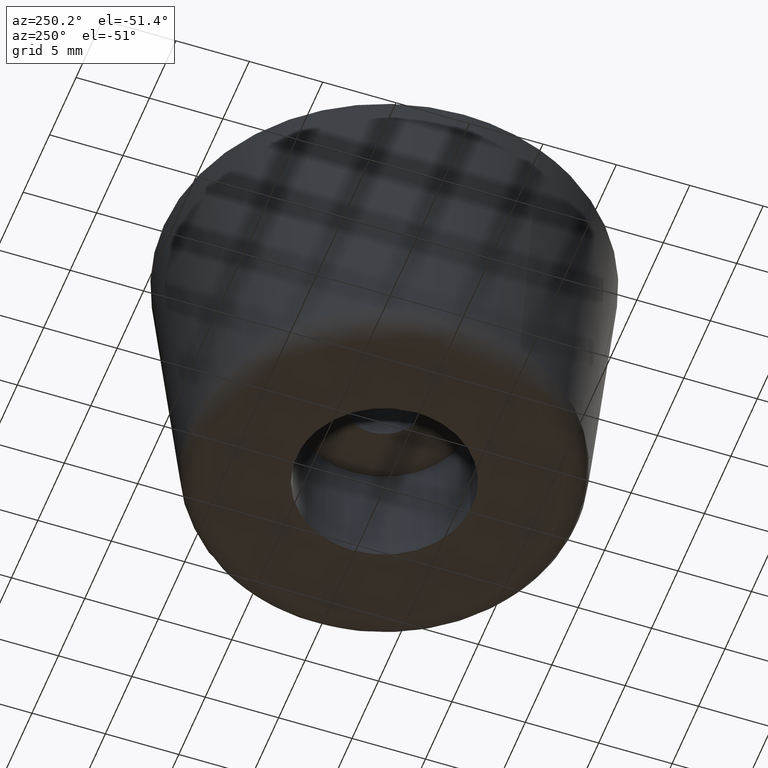
[diagram: clean part render]
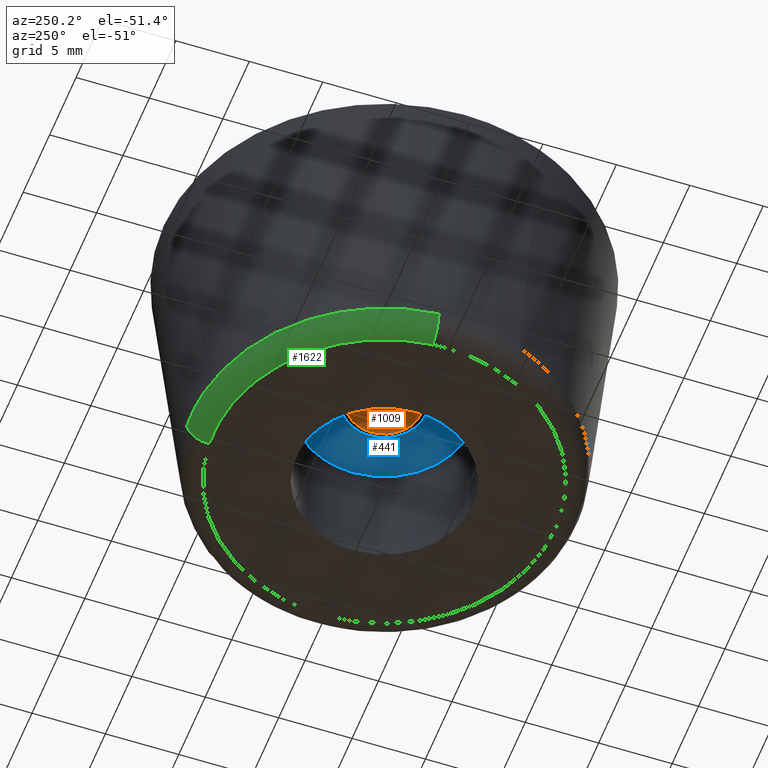
[diagram: same view with three faces highlighted in distinct colors, each labeled with its STEP entity id]
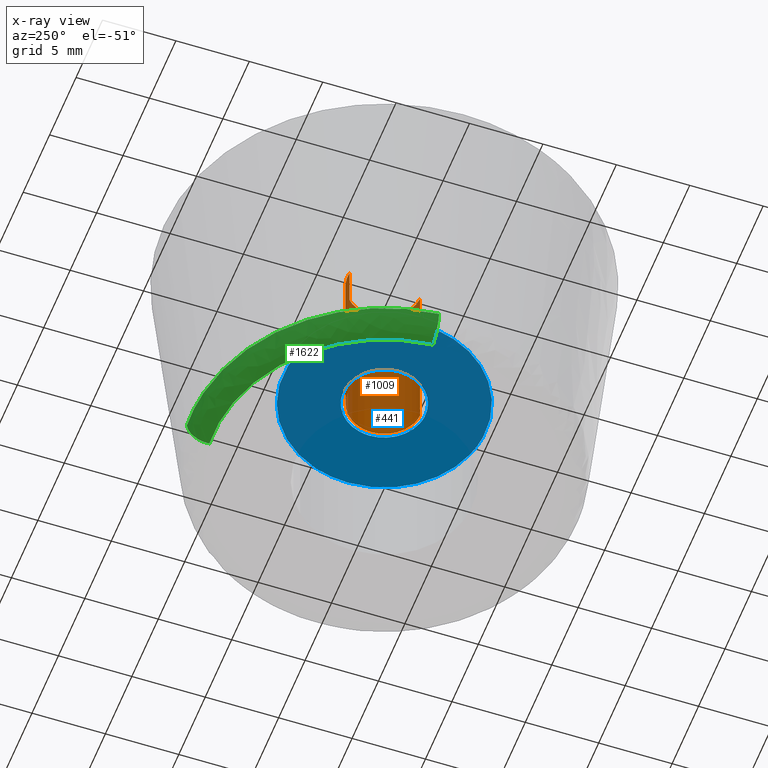
[diagram: x-ray of the same camera — body ghosted, the three highlighted faces saturated]
A machine part, auxiliary view with three faces highlighted in distinct colors.
The next image is the same camera in x-ray (body ghosted, the three faces saturated) — at least one of them is partly hidden behind the body in this view.
Their STEP definitions:

[orange] entity #1009 — the highlighted face is a freeform B-spline surface patch.
#907=CARTESIAN_POINT('',(-0.295085586641896,2.482523815909166,20.300000000000008));
#908=CARTESIAN_POINT('',(-0.224036821594944,2.490969038621514,20.300000000000004));
#909=CARTESIAN_POINT('',(-0.152621348837143,2.495336996054667,20.300000000000001));
#910=CARTESIAN_POINT('',(2.342715647217524,2.647958344891809,20.300000000000008));
#911=CARTESIAN_POINT('',(2.495336996054667,0.152621348837143,20.300000000000001));
#912=CARTESIAN_POINT('',(2.647958344891809,-2.342715647217524,20.300000000000008));
#913=CARTESIAN_POINT('',(0.152621348837143,-2.495336996054667,20.300000000000001));
#914=CARTESIAN_POINT('',(-0.295085586641896,2.482523815909166,7.692500000000000));
#915=CARTESIAN_POINT('',(-0.224036821594944,2.490969038621514,7.692499999999999));
#916=CARTESIAN_POINT('',(-0.152621348837143,2.495336996054667,7.692499999999999));
#917=CARTESIAN_POINT('',(2.342715647217524,2.647958344891809,7.692499999999999));
#918=CARTESIAN_POINT('',(2.495336996054667,0.152621348837143,7.692499999999999));
#919=CARTESIAN_POINT('',(2.647958344891809,-2.342715647217524,7.692499999999999));
#920=CARTESIAN_POINT('',(0.152621348837143,-2.495336996054667,7.692499999999999));
#928=(BOUNDED_SURFACE()B_SPLINE_SURFACE(2,1,((#907,#914),(#908,#915),(#909,#916),(#910,#917),(#911,#918),(#912,#919),(#913,#920)),.UNSPECIFIED.,.F.,.F.,.U.)B_SPLINE_SURFACE_WITH_KNOTS((3,2,2,3),(2,2),(0.0,0.165685424949238,4.307821048680188,8.449956672411137),(0.0,12.607500000000011),.UNSPECIFIED.)GEOMETRIC_REPRESENTATION_ITEM()RATIONAL_B_SPLINE_SURFACE(((0.977505800795127,0.977505800795127),(0.988284271247462,0.988284271247462),(1.0,1.0),(0.707106781186548,0.707106781186548),(1.0,1.0),(0.707106781186548,0.707106781186548),(1.0,1.0)))REPRESENTATION_ITEM('')SURFACE());
#929=CARTESIAN_POINT('',(-0.295085586665474,2.482523815906363,20.0));
#930=VERTEX_POINT('',#929);
#931=CARTESIAN_POINT('',(2.500000000000000,0.0,20.0));
#932=VERTEX_POINT('',#931);
#933=CARTESIAN_POINT('',(-0.295085586665474,2.482523815906363,20.000000000000004));
#934=CARTESIAN_POINT('',(-0.148060299153603,2.500000000000000,20.000000000000004));
#935=CARTESIAN_POINT('',(0.0,2.500000000000000,20.0));
#936=CARTESIAN_POINT('',(2.500000000000000,2.500000000000000,19.999999999999996));
#937=CARTESIAN_POINT('',(2.500000000000000,0.0,20.0));
#945=(BOUNDED_CURVE()B_SPLINE_CURVE(2,(#933,#934,#935,#936,#937),.UNSPECIFIED.,.F.,.U.)B_SPLINE_CURVE_WITH_KNOTS((3,2,3),(0.229562473512434,0.250000000000000,0.500000000000000),.UNSPECIFIED.)CURVE()GEOMETRIC_REPRESENTATION_ITEM()RATIONAL_B_SPLINE_CURVE((0.956026754181593,0.976055948329886,1.0,0.707106781186548,1.0))REPRESENTATION_ITEM(''));
#946=EDGE_CURVE('',#930,#932,#945,.T.);
#947=ORIENTED_EDGE('',*,*,#946,.F.);
#948=CARTESIAN_POINT('',(-0.295085586665474,2.482523815906363,8.0));
#949=VERTEX_POINT('',#948);
#950=CARTESIAN_POINT('',(-0.295085586665474,2.482523815906363,20.0));
#951=CARTESIAN_POINT('',(-0.295085586665474,2.482523815906363,8.0));
#952=QUASI_UNIFORM_CURVE('',1,(#950,#951),.UNSPECIFIED.,.F.,.U.);
#953=EDGE_CURVE('',#930,#949,#952,.T.);
#954=ORIENTED_EDGE('',*,*,#953,.T.);
#955=CARTESIAN_POINT('',(2.500000000000000,0.0,8.0));
#956=VERTEX_POINT('',#955);
#957=CARTESIAN_POINT('',(-0.295085586665474,2.482523815906363,8.000000000000002));
#958=CARTESIAN_POINT('',(-0.148060299153603,2.500000000000000,8.0));
#959=CARTESIAN_POINT('',(0.0,2.500000000000000,8.0));
#960=CARTESIAN_POINT('',(2.500000000000000,2.500000000000000,8.0));
#961=CARTESIAN_POINT('',(2.500000000000000,0.0,8.0));
#969=(BOUNDED_CURVE()B_SPLINE_CURVE(2,(#957,#958,#959,#960,#961),.UNSPECIFIED.,.F.,.U.)B_SPLINE_CURVE_WITH_KNOTS((3,2,3),(0.229562473512434,0.250000000000000,0.500000000000000),.UNSPECIFIED.)CURVE()GEOMETRIC_REPRESENTATION_ITEM()RATIONAL_B_SPLINE_CURVE((0.956026754181593,0.976055948329886,1.0,0.707106781186548,1.0))REPRESENTATION_ITEM(''));
#970=EDGE_CURVE('',#949,#956,#969,.T.);
#971=ORIENTED_EDGE('',*,*,#970,.T.);
#972=CARTESIAN_POINT('',(0.152621348888177,-2.495336996051546,8.0));
#973=VERTEX_POINT('',#972);
#974=CARTESIAN_POINT('',(2.500000000000000,0.0,8.0));
#975=CARTESIAN_POINT('',(2.500000000000000,-2.351765167167861,8.0));
#976=CARTESIAN_POINT('',(0.152621348888177,-2.495336996051545,8.0));
#984=(BOUNDED_CURVE()B_SPLINE_CURVE(2,(#974,#975,#976),.UNSPECIFIED.,.F.,.U.)B_SPLINE_CURVE_WITH_KNOTS((3,3),(0.500000000000000,0.739332962234911),.UNSPECIFIED.)CURVE()GEOMETRIC_REPRESENTATION_ITEM()RATIONAL_B_SPLINE_CURVE((1.0,0.719603993291434,0.976072041658075))REPRESENTATION_ITEM(''));
#985=EDGE_CURVE('',#956,#973,#984,.T.);
#986=ORIENTED_EDGE('',*,*,#985,.T.);
#987=CARTESIAN_POINT('',(0.152621348888177,-2.495336996051545,20.0));
#988=VERTEX_POINT('',#987);
#989=CARTESIAN_POINT('',(0.152621348888177,-2.495336996051545,20.0));
#990=CARTESIAN_POINT('',(0.152621348888177,-2.495336996051546,8.0));
#991=QUASI_UNIFORM_CURVE('',1,(#989,#990),.UNSPECIFIED.,.F.,.U.);
#992=EDGE_CURVE('',#988,#973,#991,.T.);
#993=ORIENTED_EDGE('',*,*,#992,.F.);
#994=CARTESIAN_POINT('',(2.500000000000000,0.0,20.0));
#995=CARTESIAN_POINT('',(2.500000000000000,-2.351765167167861,20.0));
#996=CARTESIAN_POINT('',(0.152621348888177,-2.495336996051545,20.0));
#1004=(BOUNDED_CURVE()B_SPLINE_CURVE(2,(#994,#995,#996),.UNSPECIFIED.,.F.,.U.)B_SPLINE_CURVE_WITH_KNOTS((3,3),(0.500000000000000,0.739332962234911),.UNSPECIFIED.)CURVE()GEOMETRIC_REPRESENTATION_ITEM()RATIONAL_B_SPLINE_CURVE((1.0,0.719603993291434,0.976072041658075))REPRESENTATION_ITEM(''));
#1005=EDGE_CURVE('',#932,#988,#1004,.T.);
#1006=ORIENTED_EDGE('',*,*,#1005,.F.);
#1007=EDGE_LOOP('',(#947,#954,#971,#986,#993,#1006));
#1008=FACE_OUTER_BOUND('',#1007,.T.);
#1009=ADVANCED_FACE('',(#1008),#928,.F.);

[blue] entity #441 — the highlighted face is a freeform B-spline surface patch.
#66=CARTESIAN_POINT('',(-0.330495857061675,2.780426673815561,8.0));
#67=VERTEX_POINT('',#66);
#68=CARTESIAN_POINT('',(2.800000000000000,0.0,8.0));
#69=VERTEX_POINT('',#68);
#70=CARTESIAN_POINT('',(-0.330495857061675,2.780426673815561,8.0));
#71=CARTESIAN_POINT('',(-0.165827535048340,2.800000000000000,8.0));
#72=CARTESIAN_POINT('',(0.0,2.800000000000000,8.0));
#73=CARTESIAN_POINT('',(2.800000000000000,2.800000000000000,8.0));
#74=CARTESIAN_POINT('',(2.800000000000000,0.0,8.0));
#82=(BOUNDED_CURVE()B_SPLINE_CURVE(2,(#70,#71,#72,#73,#74),.UNSPECIFIED.,.F.,.U.)B_SPLINE_CURVE_WITH_KNOTS((3,2,3),(0.229562473512879,0.250000000000000,0.500000000000000),.UNSPECIFIED.)CURVE()GEOMETRIC_REPRESENTATION_ITEM()RATIONAL_B_SPLINE_CURVE((0.956026754182465,0.976055948330407,1.0,0.707106781186547,1.0))REPRESENTATION_ITEM(''));
#83=EDGE_CURVE('',#67,#69,#82,.T.);
#85=CARTESIAN_POINT('',(0.170935910712797,-2.794777435580298,8.0));
#86=VERTEX_POINT('',#85);
#87=CARTESIAN_POINT('',(2.800000000000000,0.0,8.0));
#88=CARTESIAN_POINT('',(2.799999999999999,-2.633976987307233,8.0));
#89=CARTESIAN_POINT('',(0.170935910712797,-2.794777435580297,8.000000000000002));
#97=(BOUNDED_CURVE()B_SPLINE_CURVE(2,(#87,#88,#89),.UNSPECIFIED.,.F.,.U.)B_SPLINE_CURVE_WITH_KNOTS((3,3),(0.500000000000000,0.739332962240091),.UNSPECIFIED.)CURVE()GEOMETRIC_REPRESENTATION_ITEM()RATIONAL_B_SPLINE_CURVE((1.0,0.719603993285365,0.976072041669178))REPRESENTATION_ITEM(''));
#98=EDGE_CURVE('',#69,#86,#97,.T.);
#165=CARTESIAN_POINT('',(-2.800000000000000,0.0,8.0));
#166=VERTEX_POINT('',#165);
#167=CARTESIAN_POINT('',(-2.800000000000000,0.0,8.0));
#168=CARTESIAN_POINT('',(-2.799999999999999,2.486888672622845,8.0));
#169=CARTESIAN_POINT('',(-0.330495857061675,2.780426673815561,8.0));
#177=(BOUNDED_CURVE()B_SPLINE_CURVE(2,(#167,#168,#169),.UNSPECIFIED.,.F.,.U.)B_SPLINE_CURVE_WITH_KNOTS((3,3),(0.0,0.229562473512879),.UNSPECIFIED.)CURVE()GEOMETRIC_REPRESENTATION_ITEM()RATIONAL_B_SPLINE_CURVE((1.0,0.731050832856140,0.956026754182465))REPRESENTATION_ITEM(''));
#178=EDGE_CURVE('',#166,#67,#177,.T.);
#212=CARTESIAN_POINT('',(0.170935910712797,-2.794777435580298,8.000000000000002));
#213=CARTESIAN_POINT('',(0.085547737251289,-2.800000000000000,8.0));
#214=CARTESIAN_POINT('',(0.0,-2.800000000000000,8.0));
#215=CARTESIAN_POINT('',(-2.800000000000000,-2.800000000000000,8.0));
#216=CARTESIAN_POINT('',(-2.800000000000000,0.0,8.0));
#224=(BOUNDED_CURVE()B_SPLINE_CURVE(2,(#212,#213,#214,#215,#216),.UNSPECIFIED.,.F.,.U.)B_SPLINE_CURVE_WITH_KNOTS((3,2,3),(0.739332962240092,0.750000000000000,1.0),.UNSPECIFIED.)CURVE()GEOMETRIC_REPRESENTATION_ITEM()RATIONAL_B_SPLINE_CURVE((0.976072041669180,0.987502787901183,1.0,0.707106781186547,1.0))REPRESENTATION_ITEM(''));
#225=EDGE_CURVE('',#86,#166,#224,.T.);
#256=CARTESIAN_POINT('',(-0.814425807050112,6.851766969526972,7.999999999999947));
#257=VERTEX_POINT('',#256);
#258=CARTESIAN_POINT('',(6.900000000000000,0.0,8.0));
#259=VERTEX_POINT('',#258);
#260=CARTESIAN_POINT('',(-0.814425807050112,6.851766969526972,7.999999999999948));
#261=CARTESIAN_POINT('',(-0.408641164521007,6.900000000000000,8.0));
#262=CARTESIAN_POINT('',(0.0,6.900000000000000,8.0));
#263=CARTESIAN_POINT('',(6.900000000000000,6.900000000000000,8.0));
#264=CARTESIAN_POINT('',(6.900000000000000,0.0,8.0));
#272=(BOUNDED_CURVE()B_SPLINE_CURVE(2,(#260,#261,#262,#263,#264),.UNSPECIFIED.,.F.,.U.)B_SPLINE_CURVE_WITH_KNOTS((3,2,3),(0.229562730336416,0.250000000000000,0.500000000000000),.UNSPECIFIED.)CURVE()GEOMETRIC_REPRESENTATION_ITEM()RATIONAL_B_SPLINE_CURVE((0.956027257567727,0.976056249217898,1.0,0.707106781186548,1.0))REPRESENTATION_ITEM(''));
#273=EDGE_CURVE('',#257,#259,#272,.T.);
#314=CARTESIAN_POINT('',(0.421224192238218,-6.887130765402795,7.999999999999774));
#315=VERTEX_POINT('',#314);
#321=CARTESIAN_POINT('',(6.900000000000000,0.0,8.0));
#322=CARTESIAN_POINT('',(6.900000000000000,-6.490881993712808,8.000000000000002));
#323=CARTESIAN_POINT('',(0.421224192238218,-6.887130765402795,7.999999999999774));
#331=(BOUNDED_CURVE()B_SPLINE_CURVE(2,(#321,#322,#323),.UNSPECIFIED.,.F.,.U.)B_SPLINE_CURVE_WITH_KNOTS((3,3),(0.500000000000000,0.739333231080032),.UNSPECIFIED.)CURVE()GEOMETRIC_REPRESENTATION_ITEM()RATIONAL_B_SPLINE_CURVE((1.0,0.719603678319783,0.976072617845025))REPRESENTATION_ITEM(''));
#332=EDGE_CURVE('',#259,#315,#331,.T.);
#359=CARTESIAN_POINT('',(-6.900000000000000,0.0,8.0));
#360=VERTEX_POINT('',#359);
#361=CARTESIAN_POINT('',(-6.900000000000000,0.0,8.0));
#362=CARTESIAN_POINT('',(-6.900000000000000,6.128413607475353,8.0));
#363=CARTESIAN_POINT('',(-0.814425807050112,6.851766969526972,7.999999999999948));
#371=(BOUNDED_CURVE()B_SPLINE_CURVE(2,(#361,#362,#363),.UNSPECIFIED.,.F.,.U.)B_SPLINE_CURVE_WITH_KNOTS((3,3),(0.0,0.229562730336416),.UNSPECIFIED.)CURVE()GEOMETRIC_REPRESENTATION_ITEM()RATIONAL_B_SPLINE_CURVE((1.0,0.731050531968650,0.956027257567727))REPRESENTATION_ITEM(''));
#372=EDGE_CURVE('',#360,#257,#371,.T.);
#374=CARTESIAN_POINT('',(0.421224192238218,-6.887130765402795,7.999999999999774));
#375=CARTESIAN_POINT('',(0.210808686441044,-6.900000000000000,8.0));
#376=CARTESIAN_POINT('',(0.0,-6.900000000000000,8.0));
#377=CARTESIAN_POINT('',(-6.900000000000000,-6.900000000000000,8.0));
#378=CARTESIAN_POINT('',(-6.900000000000000,0.0,8.0));
#386=(BOUNDED_CURVE()B_SPLINE_CURVE(2,(#374,#375,#376,#377,#378),.UNSPECIFIED.,.F.,.U.)B_SPLINE_CURVE_WITH_KNOTS((3,2,3),(0.739333231080032,0.750000000000000,1.0),.UNSPECIFIED.)CURVE()GEOMETRIC_REPRESENTATION_ITEM()RATIONAL_B_SPLINE_CURVE((0.976072617845025,0.987503102866765,1.0,0.707106781186548,1.0))REPRESENTATION_ITEM(''));
#387=EDGE_CURVE('',#315,#360,#386,.T.);
#424=CARTESIAN_POINT('',(-7.589310102797448,-7.589142292475028,8.0));
#425=CARTESIAN_POINT('',(7.589310349560679,-7.589142292475028,8.0));
#426=CARTESIAN_POINT('',(-7.589310102797448,7.589184488987248,8.0));
#427=CARTESIAN_POINT('',(7.589310349560679,7.589184488987248,8.0));
#428=B_SPLINE_SURFACE_WITH_KNOTS('',1,1,((#424,#426),(#425,#427)),.UNSPECIFIED.,.F.,.F.,.U.,(2,2),(2,2),(0.0,15.178620452358130),(0.0,15.178326781462280),.UNSPECIFIED.);
#429=ORIENTED_EDGE('',*,*,#372,.T.);
#430=ORIENTED_EDGE('',*,*,#273,.T.);
#431=ORIENTED_EDGE('',*,*,#332,.T.);
#432=ORIENTED_EDGE('',*,*,#387,.T.);
#433=EDGE_LOOP('',(#429,#430,#431,#432));
#434=FACE_OUTER_BOUND('',#433,.T.);
#435=ORIENTED_EDGE('',*,*,#98,.F.);
#436=ORIENTED_EDGE('',*,*,#83,.F.);
#437=ORIENTED_EDGE('',*,*,#178,.F.);
#438=ORIENTED_EDGE('',*,*,#225,.F.);
#439=EDGE_LOOP('',(#435,#436,#437,#438));
#440=FACE_BOUND('',#439,.T.);
#441=ADVANCED_FACE('',(#434,#440),#428,.F.);

[green] entity #1622 — the highlighted face is a freeform B-spline surface patch.
#859=CARTESIAN_POINT('',(0.989423196236340,13.097756360902920,1.350744958231219));
#860=VERTEX_POINT('',#859);
#874=CARTESIAN_POINT('',(-13.097756360903629,0.989423196243246,1.350744958243485));
#875=VERTEX_POINT('',#874);
#876=CARTESIAN_POINT('',(-13.097756360903636,0.989423196243246,1.350744958243485));
#877=CARTESIAN_POINT('',(-12.180256157787268,13.135073999999980,1.350745000000000));
#878=CARTESIAN_POINT('',(0.0,13.135073999999980,1.350745000000000));
#879=CARTESIAN_POINT('',(0.495415344601110,13.135073999999980,1.350745000000000));
#880=CARTESIAN_POINT('',(0.989423196236340,13.097756360902922,1.350744958231218));
#888=(BOUNDED_CURVE()B_SPLINE_CURVE(2,(#876,#877,#878,#879,#880),.UNSPECIFIED.,.F.,.U.)B_SPLINE_CURVE_WITH_KNOTS((3,2,3),(0.013129840737868,0.250000000000000,0.263129840737689),.UNSPECIFIED.)CURVE()GEOMETRIC_REPRESENTATION_ITEM()RATIONAL_B_SPLINE_CURVE((0.970850634526766,0.722489346451436,1.0,0.984617434735321,0.970850634527140))REPRESENTATION_ITEM(''));
#889=EDGE_CURVE('',#875,#860,#888,.T.);
#1502=CARTESIAN_POINT('',(0.876993764689428,11.609441443112891,-9.937312E-014));
#1503=VERTEX_POINT('',#1502);
#1519=CARTESIAN_POINT('',(0.989423196236340,13.097756360902920,1.350744958231219));
#1520=CARTESIAN_POINT('',(0.979248531805115,12.963066496886189,1.477586E-009));
#1521=CARTESIAN_POINT('',(0.876993764689428,11.609441443112885,-9.937312E-014));
#1529=(BOUNDED_CURVE()B_SPLINE_CURVE(2,(#1519,#1520,#1521),.UNSPECIFIED.,.F.,.U.)B_SPLINE_CURVE_WITH_KNOTS((3,3),(-1.710024344260570,-0.277482477633152),.UNSPECIFIED.)CURVE()GEOMETRIC_REPRESENTATION_ITEM()RATIONAL_B_SPLINE_CURVE((0.888708382971118,0.660422433206934,0.892725170638497))REPRESENTATION_ITEM(''));
#1530=EDGE_CURVE('',#860,#1503,#1529,.T.);
#1537=CARTESIAN_POINT('',(-11.609441442593070,0.876993764607335,-9.951443E-014));
#1538=VERTEX_POINT('',#1537);
#1539=CARTESIAN_POINT('',(-13.097756360903629,0.989423196243246,1.350744958243486));
#1540=CARTESIAN_POINT('',(-12.963066496813882,0.979248531799653,5.282153E-010));
#1541=CARTESIAN_POINT('',(-11.609441442593074,0.876993764607335,-9.951443E-014));
#1549=(BOUNDED_CURVE()B_SPLINE_CURVE(2,(#1539,#1540,#1541),.UNSPECIFIED.,.F.,.U.)B_SPLINE_CURVE_WITH_KNOTS((3,3),(-1.710024344278077,-0.277482476884927),.UNSPECIFIED.)CURVE()GEOMETRIC_REPRESENTATION_ITEM()RATIONAL_B_SPLINE_CURVE((0.888708382976698,0.660422433084860,0.892725170881163))REPRESENTATION_ITEM(''));
#1550=EDGE_CURVE('',#875,#1538,#1549,.T.);
#1585=CARTESIAN_POINT('',(-13.104347624911563,0.989921109718979,1.449970809352953));
#1586=CARTESIAN_POINT('',(-12.114426515192587,14.094268734630544,1.449970809352954));
#1587=CARTESIAN_POINT('',(0.989921109718979,13.104347624911563,1.449970809352953));
#1588=CARTESIAN_POINT('',(-13.052805035603994,0.986027509009842,-0.098945501557196));
#1589=CARTESIAN_POINT('',(-12.066777526594151,14.038832544613834,-0.098945501557196));
#1590=CARTESIAN_POINT('',(0.986027509009841,13.052805035603994,-0.098945501557196));
#1591=CARTESIAN_POINT('',(-11.510794185039192,0.869541810058451,0.003265826204082));
#1592=CARTESIAN_POINT('',(-10.641252374980734,12.380335995097635,0.003265826204082));
#1593=CARTESIAN_POINT('',(0.869541810058450,11.510794185039192,0.003265826204082));
#1601=(BOUNDED_SURFACE()B_SPLINE_SURFACE(2,2,((#1585,#1588,#1591),(#1586,#1589,#1592),(#1587,#1590,#1593)),.UNSPECIFIED.,.F.,.F.,.U.)B_SPLINE_SURFACE_WITH_KNOTS((3,3),(3,3),(0.0,21.773855745042781),(0.0,2.542835043858419),.UNSPECIFIED.)GEOMETRIC_REPRESENTATION_ITEM()RATIONAL_B_SPLINE_SURFACE(((0.912663320219089,0.636266896591309,0.917081305369118),(0.645350422667147,0.449908637224235,0.648474409925914),(0.912663320219089,0.636266896591309,0.917081305369118)))REPRESENTATION_ITEM('')SURFACE());
#1602=CARTESIAN_POINT('',(-11.609441442593070,0.876993764607335,-9.951443E-014));
#1603=CARTESIAN_POINT('',(-10.796198311609436,11.642518999999998,-9.947598E-014));
#1604=CARTESIAN_POINT('',(0.0,11.642519000000000,-9.947598E-014));
#1605=CARTESIAN_POINT('',(0.439120675161852,11.642519000000007,-9.947598E-014));
#1606=CARTESIAN_POINT('',(0.876993764689428,11.609441443112885,-9.937312E-014));
#1614=(BOUNDED_CURVE()B_SPLINE_CURVE(2,(#1602,#1603,#1604,#1605,#1606),.UNSPECIFIED.,.F.,.U.)B_SPLINE_CURVE_WITH_KNOTS((3,2,3),(0.013129840738158,0.250000000000000,0.263129840739417),.UNSPECIFIED.)CURVE()GEOMETRIC_REPRESENTATION_ITEM()RATIONAL_B_SPLINE_CURVE((0.970850634526157,0.722489346451776,1.0,0.984617434733296,0.970850634523517))REPRESENTATION_ITEM(''));
#1615=EDGE_CURVE('',#1538,#1503,#1614,.T.);
#1616=ORIENTED_EDGE('',*,*,#1615,.F.);
#1617=ORIENTED_EDGE('',*,*,#1550,.F.);
#1618=ORIENTED_EDGE('',*,*,#889,.T.);
#1619=ORIENTED_EDGE('',*,*,#1530,.T.);
#1620=EDGE_LOOP('',(#1616,#1617,#1618,#1619));
#1621=FACE_OUTER_BOUND('',#1620,.T.);
#1622=ADVANCED_FACE('',(#1621),#1601,.T.);